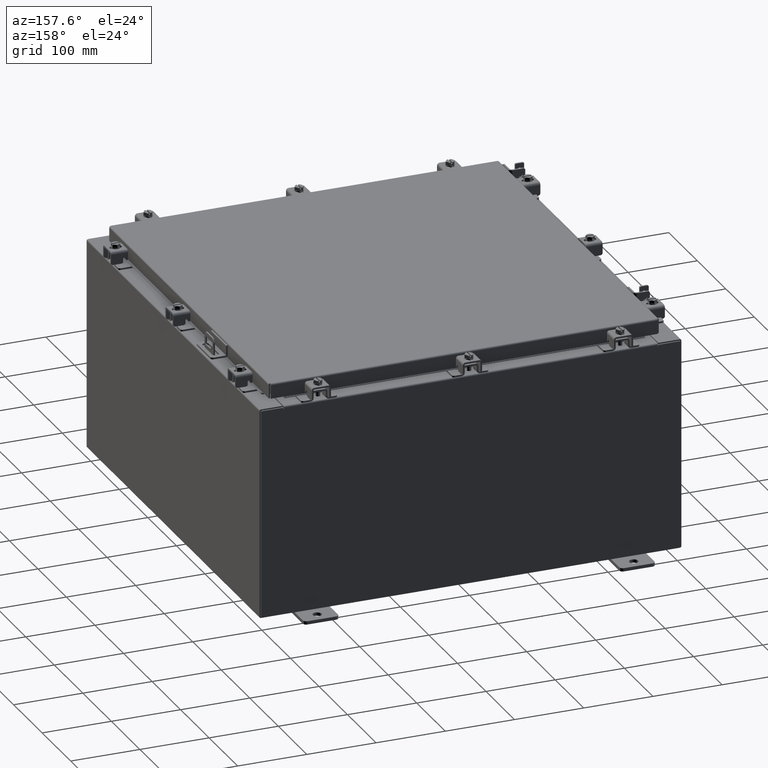
[diagram: clean part render]
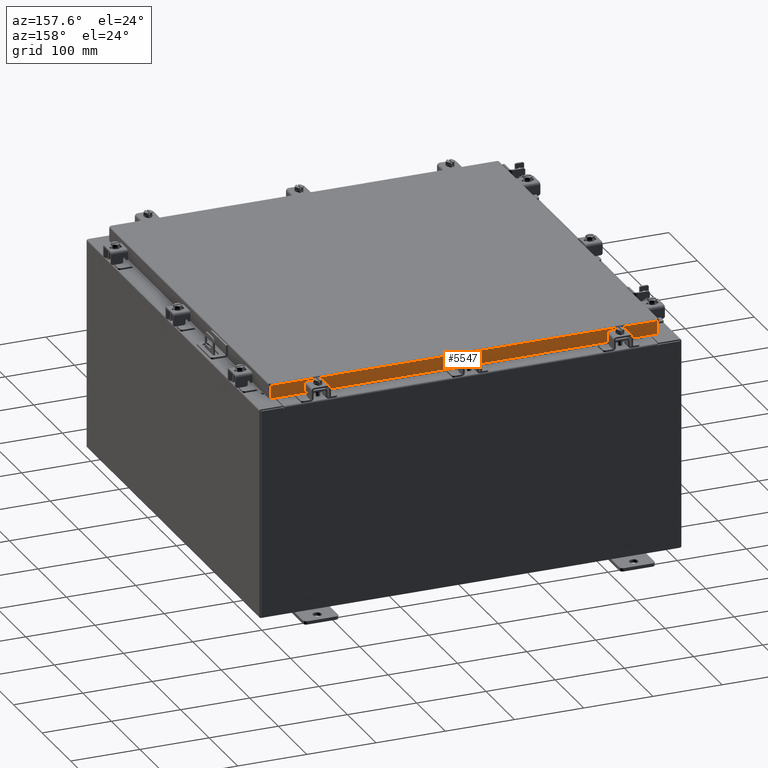
[diagram: same view with one face highlighted and labeled with its STEP entity id]
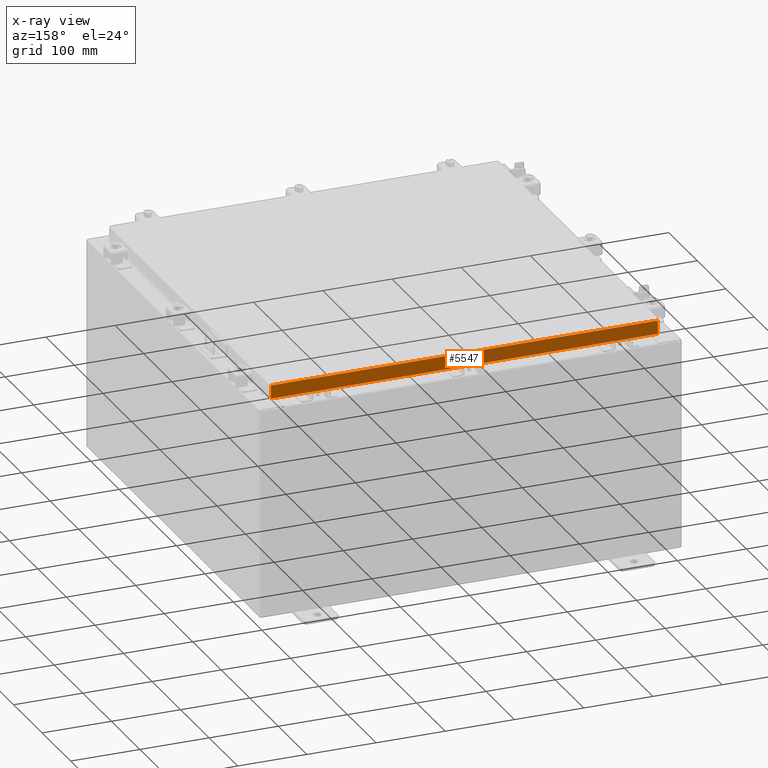
[diagram: x-ray of the same camera — body ghosted, the highlighted face saturated]
A machine part, auxiliary view. The second image highlights one B-rep face of the part: STEP entity #5547.
The next image is the same camera in x-ray: the body ghosted, the highlighted face saturated — about 0% of this face is hidden behind the body in this view.
In plain terms, the highlighted planar face has unit normal (0, -1, -0).
Its self-contained STEP definition (entity closure, byte-faithful):
#1062 = DIRECTION ( 'NONE',  ( -0.0000000000000000000, 2.818880942772350300E-015, -1.000000000000000000 ) ) ;
#1120 = DIRECTION ( 'NONE',  ( 3.470684265319575600E-031, -1.000000000000000000, -2.818880942772350300E-015 ) ) ;
#1432 = ORIENTED_EDGE ( 'NONE', *, *, #6915, .F. ) ;
#1508 = LINE ( 'NONE', #21904, #19497 ) ;
#1744 = LINE ( 'NONE', #10264, #6399 ) ;
#1752 = CARTESIAN_POINT ( 'NONE',  ( -10.25515786437626900, 11.09399999999999900, -0.8500000000000043100 ) ) ;
#2035 = VECTOR ( 'NONE', #15094, 39.37007874015748100 ) ;
#2348 = CARTESIAN_POINT ( 'NONE',  ( 11.00515786437626700, 11.09399999999999900, 3.059669752903974500E-014 ) ) ;
#3048 = CARTESIAN_POINT ( 'NONE',  ( -11.09399999999999900, 11.09399999999999900, -0.08770000000000026400 ) ) ;
#3382 = EDGE_CURVE ( 'NONE', #5334, #22524, #1744, .T. ) ;
#4218 = ORIENTED_EDGE ( 'NONE', *, *, #12218, .F. ) ;
#4697 = CARTESIAN_POINT ( 'NONE',  ( -11.09399999999999900, 11.09400000000000100, -0.8500000000000020900 ) ) ;
#5197 = CARTESIAN_POINT ( 'NONE',  ( -11.00515786437626700, 11.09400000000000100, -0.8500000000000020900 ) ) ;
#5334 = VERTEX_POINT ( 'NONE', #17944 ) ;
#5547 = ADVANCED_FACE ( 'NONE', ( #17864 ), #11514, .F. ) ;
#6167 = CARTESIAN_POINT ( 'NONE',  ( 11.00515786437626700, 11.09399999999999900, -0.08770000000000026400 ) ) ;
#6243 = AXIS2_PLACEMENT_3D ( 'NONE', #21889, #1120, #13286 ) ;
#6399 = VECTOR ( 'NONE', #20715, 39.37007874015748100 ) ;
#6915 = EDGE_CURVE ( 'NONE', #12391, #5334, #17307, .T. ) ;
#7136 = ORIENTED_EDGE ( 'NONE', *, *, #19166, .T. ) ;
#7303 = EDGE_CURVE ( 'NONE', #14347, #12391, #14822, .T. ) ;
#7416 = CARTESIAN_POINT ( 'NONE',  ( -11.00515786437626700, 11.09399999999999900, -0.08770000000000026400 ) ) ;
#7587 = ORIENTED_EDGE ( 'NONE', *, *, #15644, .F. ) ;
#8558 = LINE ( 'NONE', #3048, #22440 ) ;
#8759 = VECTOR ( 'NONE', #21519, 39.37007874015748100 ) ;
#8854 = EDGE_LOOP ( 'NONE', ( #4218, #7136, #22097, #1432, #22196, #7587 ) ) ;
#8894 = DIRECTION ( 'NONE',  ( 1.000000000000000000, -0.0000000000000000000, -0.0000000000000000000 ) ) ;
#10264 = CARTESIAN_POINT ( 'NONE',  ( -11.09399999999999900, 11.09400000000000100, -0.8500000000000020900 ) ) ;
#11463 = VERTEX_POINT ( 'NONE', #6167 ) ;
#11514 = PLANE ( 'NONE',  #6243 ) ;
#12218 = EDGE_CURVE ( 'NONE', #11463, #13717, #8558, .T. ) ;
#12391 = VERTEX_POINT ( 'NONE', #1752 ) ;
#12650 = VECTOR ( 'NONE', #8894, 39.37007874015748100 ) ;
#13286 = DIRECTION ( 'NONE',  ( 0.0000000000000000000, 2.818880942772350300E-015, -1.000000000000000000 ) ) ;
#13364 = LINE ( 'NONE', #2348, #8759 ) ;
#13717 = VERTEX_POINT ( 'NONE', #7416 ) ;
#14050 = CARTESIAN_POINT ( 'NONE',  ( -10.25515786437626400, 11.09399999999999900, -0.8500000000000043100 ) ) ;
#14347 = VERTEX_POINT ( 'NONE', #5197 ) ;
#14822 = LINE ( 'NONE', #4697, #2035 ) ;
#15094 = DIRECTION ( 'NONE',  ( 1.000000000000000000, -4.379057701015054300E-047, 1.231227687788112800E-016 ) ) ;
#15644 = EDGE_CURVE ( 'NONE', #13717, #14347, #1508, .T. ) ;
#16963 = DIRECTION ( 'NONE',  ( -1.000000000000000000, -3.470684265319576000E-031, -9.460278716967629600E-046 ) ) ;
#17307 = LINE ( 'NONE', #14050, #12650 ) ;
#17864 = FACE_OUTER_BOUND ( 'NONE', #8854, .T. ) ;
#17944 = CARTESIAN_POINT ( 'NONE',  ( 10.25515786437625500, 11.09399999999999900, -0.8500000000000043100 ) ) ;
#19166 = EDGE_CURVE ( 'NONE', #11463, #22524, #13364, .T. ) ;
#19497 = VECTOR ( 'NONE', #1062, 39.37007874015748100 ) ;
#20715 = DIRECTION ( 'NONE',  ( 1.000000000000000000, -4.379057701015054300E-047, 1.231227687788112800E-016 ) ) ;
#21519 = DIRECTION ( 'NONE',  ( 0.0000000000000000000, 2.818880942772350300E-015, -1.000000000000000000 ) ) ;
#21838 = CARTESIAN_POINT ( 'NONE',  ( 11.00515786437626700, 11.09400000000000100, -0.8499999999999999800 ) ) ;
#21889 = CARTESIAN_POINT ( 'NONE',  ( 0.0000000000000000000, 11.09399999999999900, 3.059669752903974500E-014 ) ) ;
#21904 = CARTESIAN_POINT ( 'NONE',  ( -11.00515786437626700, 11.09399999999999900, -0.07470000000000015500 ) ) ;
#22097 = ORIENTED_EDGE ( 'NONE', *, *, #3382, .F. ) ;
#22196 = ORIENTED_EDGE ( 'NONE', *, *, #7303, .F. ) ;
#22440 = VECTOR ( 'NONE', #16963, 39.37007874015748100 ) ;
#22524 = VERTEX_POINT ( 'NONE', #21838 ) ;